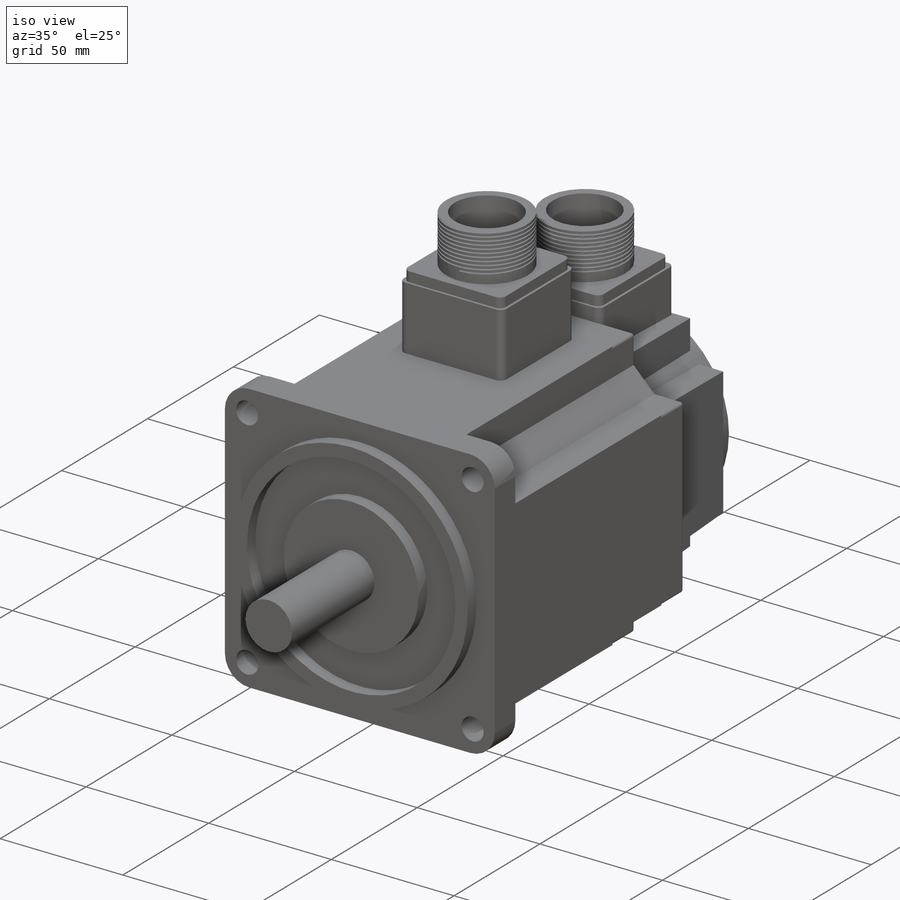
[diagram: iso view]
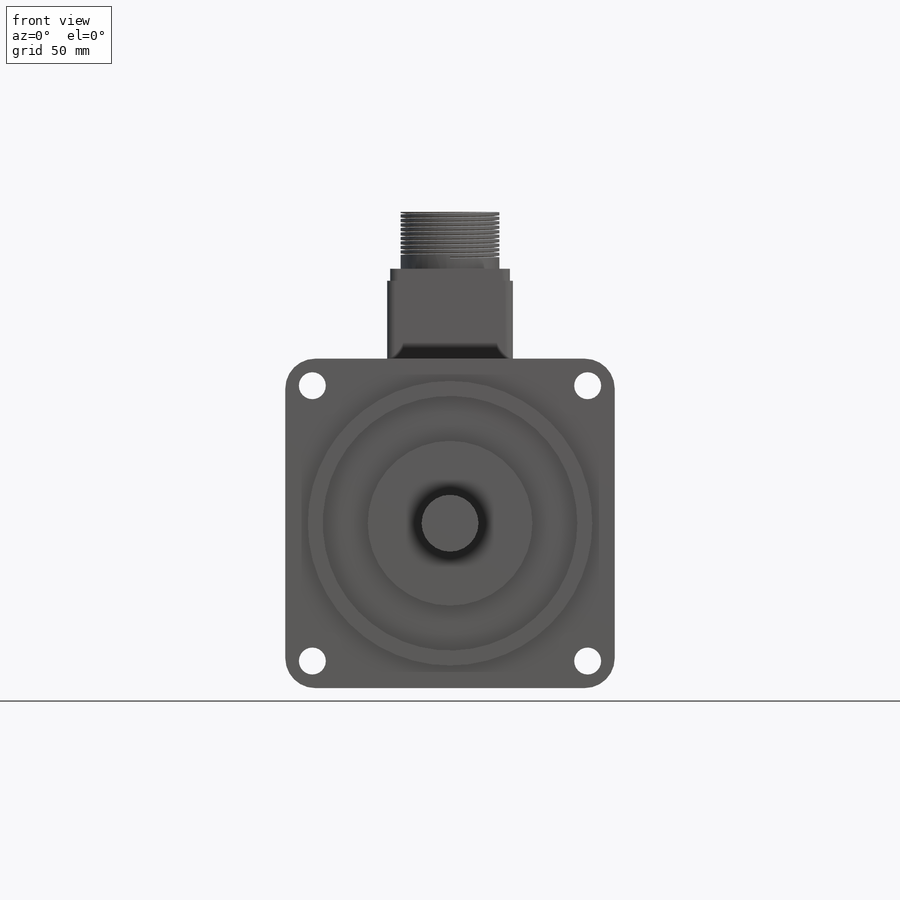
[diagram: front view]
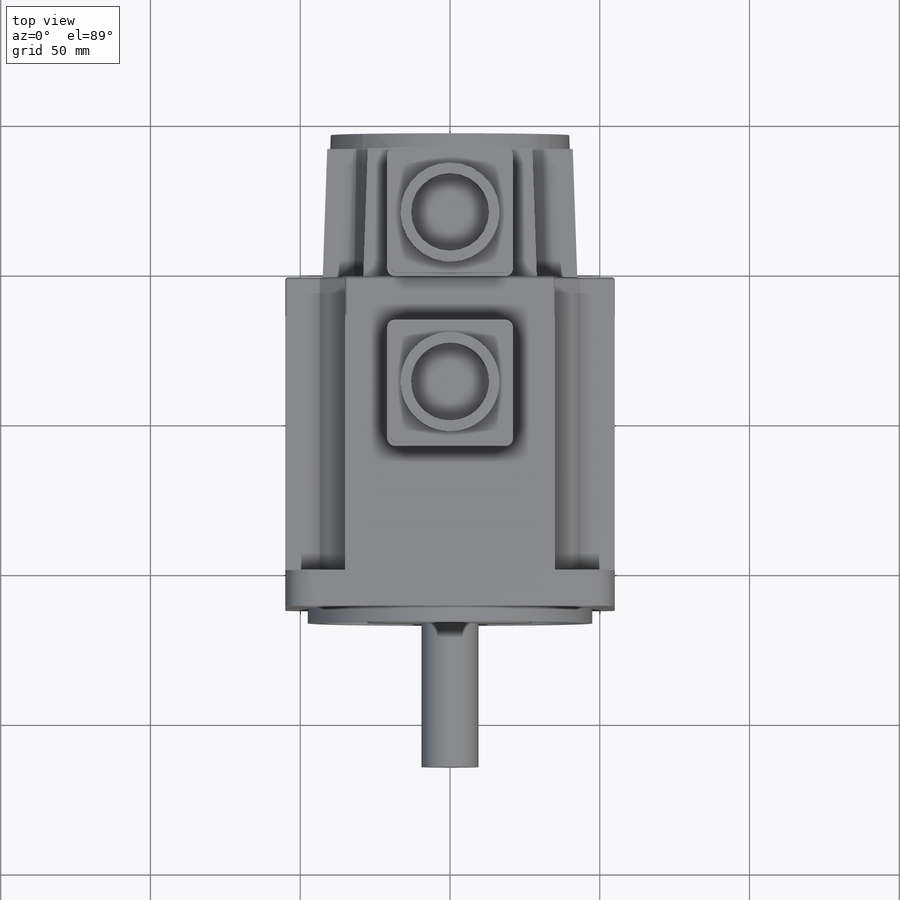
[diagram: top view]
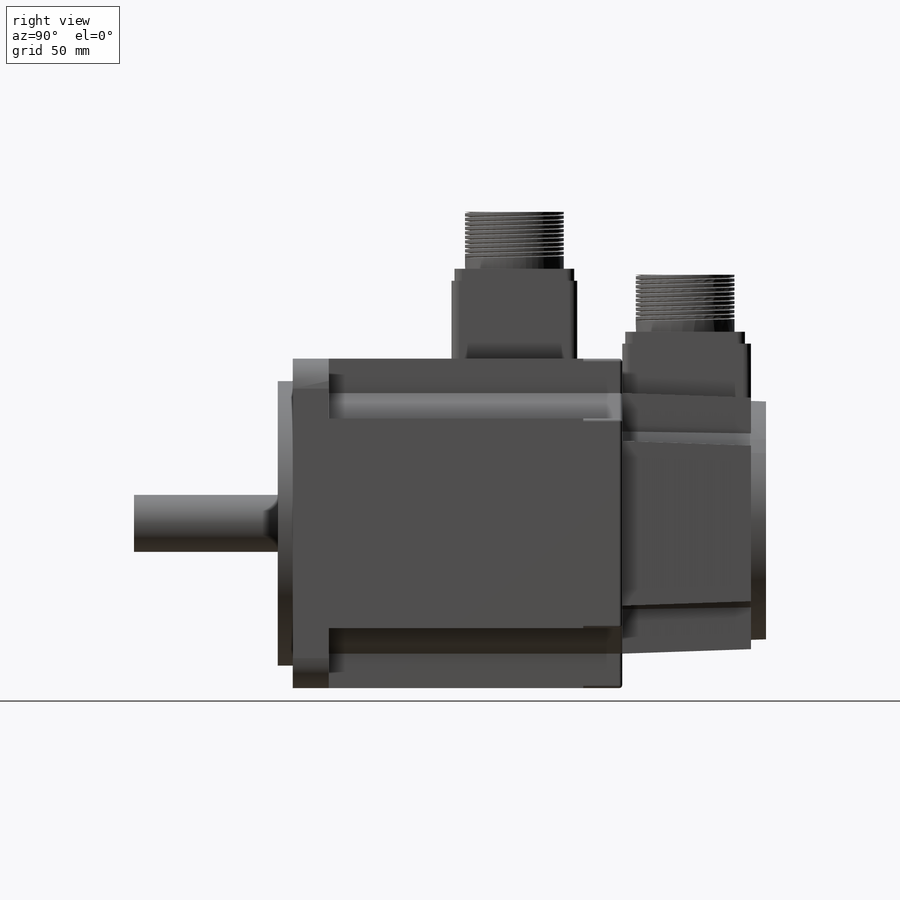
[diagram: right view]
SOLIDWORKS PART (.sldprt)
format: sldprt  version: not decoded by parser v0  size: 1,170,944 bytes
history: native  units: mm
features: sketch x19, extrude x13, fillet x6, plane x3, cut_extrude x2, helix x2, sweep x2, material x1 (+9 scaffold rows collapsed)
feature tree (57):
  scaffold x9  (default folders/planes/origin — collapsed)
  material  "Material <not specified>"
  plane  "Alzado"
  plane  "Planta"
  plane  "Vista lateral"
  sketch  "Croquis1"  dims[D1=110.0mm D2=110.0mm D3=55.0mm]
  extrude  "Saliente-Extruir1"  Depth=12mm
  fillet  "Redondeo1"  Radius=10mm
  sketch  "Croquis2"  dims[D1=95.0mm D2=55.0mm]
  extrude  "Saliente-Extruir2"  Depth=5mm
  sketch  "Croquis3"  dims[D1=19.0mm]
  extrude  "Saliente-Extruir3"  Depth=48mm
  sketch  "Croquis6"  dims[c1.D1=110.0mm c1.D2=110.0mm c1.D3=55.0mm c1.D4=20.0mm c1.D5=12.0mm c1.D6=20.0mm c2.D6=45.0deg]
  sketch  "Croquis10"  dims[c1.D1=9.0mm c1.D2=9.0mm c1.D3=9.0mm c1.D4=9.0mm c1.D9=9.0mm c2.D1=9.0mm c2.D2=9.0mm c2.D3=9.0mm c2.D4=9.0mm c2.D5=65.0mm c2.D6=65.0mm c2.D7=65.0mm c2.D8=65.0mm c2.D9=~1.378095mm c3.D1=65.0mm c3.D6=65.0mm c3.D7=65.0mm c3.D8=65.0mm]
  cut_extrude  "Cortar-Extruir3"  [1 undecoded]
  sketch  "Sketch1"  dims[c1.D1=~85.182345mm c1.D2=55.0mm c2.D1=15.0mm c2.D2=28.0mm]
  cut_extrude  "Cut-Extrude2"  Depth=5mm
  extrude  "Boss-Extrude1"  Depth=85mm
  sketch  "Sketch2"
  extrude  "Boss-Extrude2"  Depth=13mm
  fillet  "Fillet2"  Radius=1mm
  sketch  "Sketch3"  dims[D1=42.0mm D2=42.0mm D3=2.0mm D4=21.0mm]
  extrude  "Boss-Extrude3"  Depth=26mm
  fillet  "Fillet3"  Radius=2.5mm
  sketch  "Sketch5"  dims[D1=85.0mm D2=55.0mm D3=55.0mm D4=58.0mm D5=87.0mm]
  extrude  "Boss-Extrude5"  Depth=43mm
  sketch  "Sketch7"  dims[D1=83.0mm D2=55.0mm]
  extrude  "Boss-Extrude6"  Depth=48mm
  sketch  "Sketch8"  dims[D1=42.0mm D2=42.0mm D3=3.0mm D4=55.0mm]
  extrude  "Boss-Extrude7"  Depth=5mm
  fillet  "Fillet4"  Radius=2.5mm
  sketch  "Sketch9"  dims[D1=40.0mm D2=40.0mm D3=21.0mm D4=21.0mm]
  extrude  "Boss-Extrude8"  Depth=4mm
  fillet  "Fillet5"  Radius=2.5mm
  sketch  "Sketch10"  dims[D1=33.0mm D2=26.0mm D3=20.0mm]
  extrude  "Boss-Extrude9"  Depth=19mm
  sketch  "Sketch12"  dims[D1=40.0mm D2=40.0mm D3=21.0mm]
  extrude  "Boss-Extrude10"  Depth=4mm
  fillet  "Fillet6"  Radius=2.5mm
  sketch  "Sketch13"  dims[D1=33.0mm D2=26.0mm D3=20.0mm D4=20.0mm]
  extrude  "Boss-Extrude11"  Depth=19mm
  sketch  "Sketch14"
  helix  "Helix/Spiral1"  Pitch=15mm
  sketch  "Sketch15"  dims[c1.D1=~0.637656mm c2.D1=15.0deg c2.D2=2.0mm c2.D3=0.5mm c3.D1=0.25mm]
  sweep  "Cut-Sweep1"
  sketch  "Sketch16"
  helix  "Helix/Spiral2"  Pitch=15mm
  sketch  "Sketch17"  dims[D1=0.5mm D2=2.0mm D3=0.25mm]
  sweep  "Cut-Sweep2"
decode coverage: 38 of 44 modeling features carry decoded parameters
note: ~ marks probable driven/reference dimensions
note: 1 parameter value undecoded
note: suppression state not decoded; provenance and decode notes live in map.json
